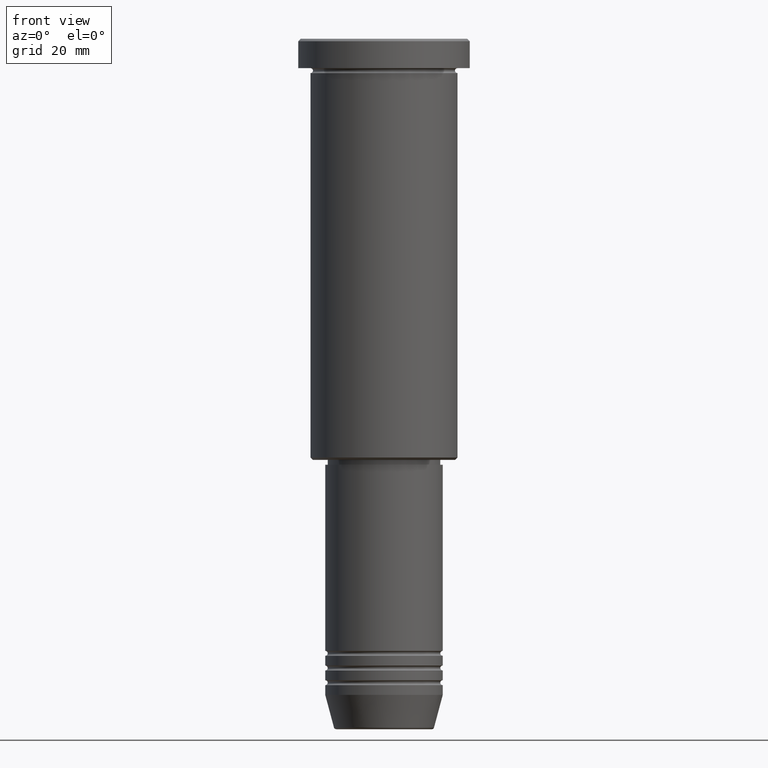
[diagram: clean part render]
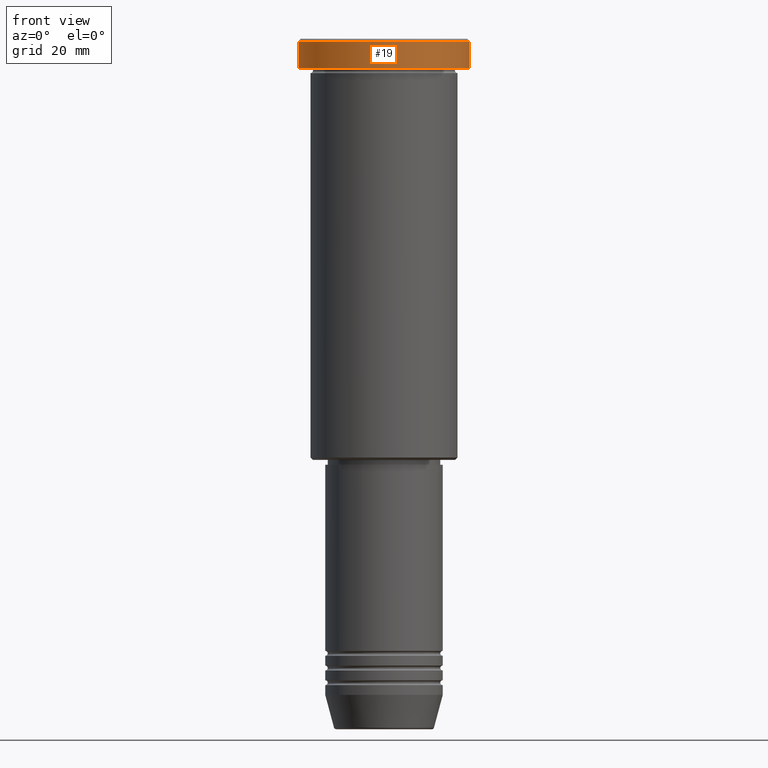
[diagram: same view with one face highlighted and labeled with its STEP entity id]
A machine part, front view. The second image highlights one B-rep face of the part: STEP entity #19.
In plain terms, the highlighted cylindrical surface (partial cylindrical patch) has radius 17.5 mm, axis along (-0, -0, 1).
Its self-contained STEP definition (entity closure, byte-faithful):
#11 = FACE_OUTER_BOUND ( 'NONE', #676, .T. ) ;
#19 = ADVANCED_FACE ( 'NONE', ( #11 ), #665, .T. ) ;
#49 = EDGE_CURVE ( 'NONE', #228, #516, #839, .T. ) ;
#84 = AXIS2_PLACEMENT_3D ( 'NONE', #373, #916, #729 ) ;
#154 = DIRECTION ( 'NONE',  ( -0.000000000000000000, -0.000000000000000000, 1.000000000000000000 ) ) ;
#156 = EDGE_CURVE ( 'NONE', #232, #704, #395, .T. ) ;
#228 = VERTEX_POINT ( 'NONE', #402 ) ;
#232 = VERTEX_POINT ( 'NONE', #686 ) ;
#249 = DIRECTION ( 'NONE',  ( 0.000000000000000000, 0.000000000000000000, -1.000000000000000000 ) ) ;
#298 = CARTESIAN_POINT ( 'NONE',  ( 17.50000000000000000, 0.000000000000000000, 0.000000000000000000 ) ) ;
#373 = CARTESIAN_POINT ( 'NONE',  ( 0.000000000000000000, 0.000000000000000000, 0.000000000000000000 ) ) ;
#395 = LINE ( 'NONE', #490, #731 ) ;
#400 = CARTESIAN_POINT ( 'NONE',  ( -17.50000000000000000, 2.143131898507868248E-15, -0.5000000000000143219 ) ) ;
#402 = CARTESIAN_POINT ( 'NONE',  ( 17.50000000000000000, 0.000000000000000000, -5.999999999999995559 ) ) ;
#490 = CARTESIAN_POINT ( 'NONE',  ( -17.50000000000000000, 2.143131898507868248E-15, 0.000000000000000000 ) ) ;
#501 = DIRECTION ( 'NONE',  ( 1.000000000000000000, 0.000000000000000000, 0.000000000000000000 ) ) ;
#512 = CARTESIAN_POINT ( 'NONE',  ( 0.000000000000000000, 0.000000000000000000, -0.5000000000000143219 ) ) ;
#516 = VERTEX_POINT ( 'NONE', #560 ) ;
#560 = CARTESIAN_POINT ( 'NONE',  ( 17.50000000000000000, 0.000000000000000000, -0.5000000000000143219 ) ) ;
#625 = AXIS2_PLACEMENT_3D ( 'NONE', #975, #154, #804 ) ;
#665 = CYLINDRICAL_SURFACE ( 'NONE', #84, 17.50000000000000000 ) ;
#676 = EDGE_LOOP ( 'NONE', ( #1131, #921, #758, #892 ) ) ;
#686 = CARTESIAN_POINT ( 'NONE',  ( -17.50000000000000000, 2.143131898507868248E-15, -5.999999999999995559 ) ) ;
#704 = VERTEX_POINT ( 'NONE', #400 ) ;
#729 = DIRECTION ( 'NONE',  ( 1.000000000000000000, 0.000000000000000000, 0.000000000000000000 ) ) ;
#731 = VECTOR ( 'NONE', #768, 1000.000000000000000 ) ;
#758 = ORIENTED_EDGE ( 'NONE', *, *, #49, .T. ) ;
#768 = DIRECTION ( 'NONE',  ( -0.000000000000000000, -0.000000000000000000, 1.000000000000000000 ) ) ;
#778 = AXIS2_PLACEMENT_3D ( 'NONE', #512, #249, #501 ) ;
#804 = DIRECTION ( 'NONE',  ( 1.000000000000000000, 0.000000000000000000, 0.000000000000000000 ) ) ;
#836 = EDGE_CURVE ( 'NONE', #516, #704, #968, .T. ) ;
#839 = LINE ( 'NONE', #298, #1159 ) ;
#892 = ORIENTED_EDGE ( 'NONE', *, *, #836, .T. ) ;
#916 = DIRECTION ( 'NONE',  ( -0.000000000000000000, -0.000000000000000000, 1.000000000000000000 ) ) ;
#921 = ORIENTED_EDGE ( 'NONE', *, *, #1130, .T. ) ;
#968 = CIRCLE ( 'NONE', #778, 17.50000000000000000 ) ;
#975 = CARTESIAN_POINT ( 'NONE',  ( 0.000000000000000000, 0.000000000000000000, -5.999999999999995559 ) ) ;
#1030 = DIRECTION ( 'NONE',  ( -0.000000000000000000, -0.000000000000000000, 1.000000000000000000 ) ) ;
#1130 = EDGE_CURVE ( 'NONE', #232, #228, #1141, .T. ) ;
#1131 = ORIENTED_EDGE ( 'NONE', *, *, #156, .F. ) ;
#1141 = CIRCLE ( 'NONE', #625, 17.50000000000000000 ) ;
#1159 = VECTOR ( 'NONE', #1030, 1000.000000000000000 ) ;